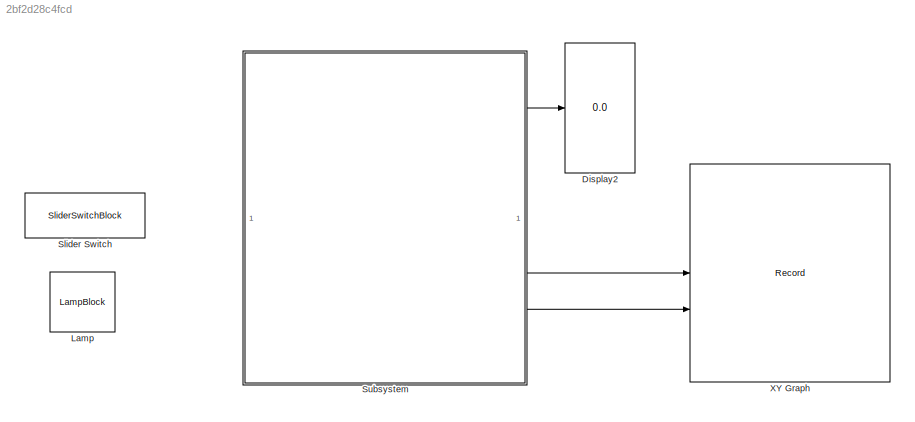
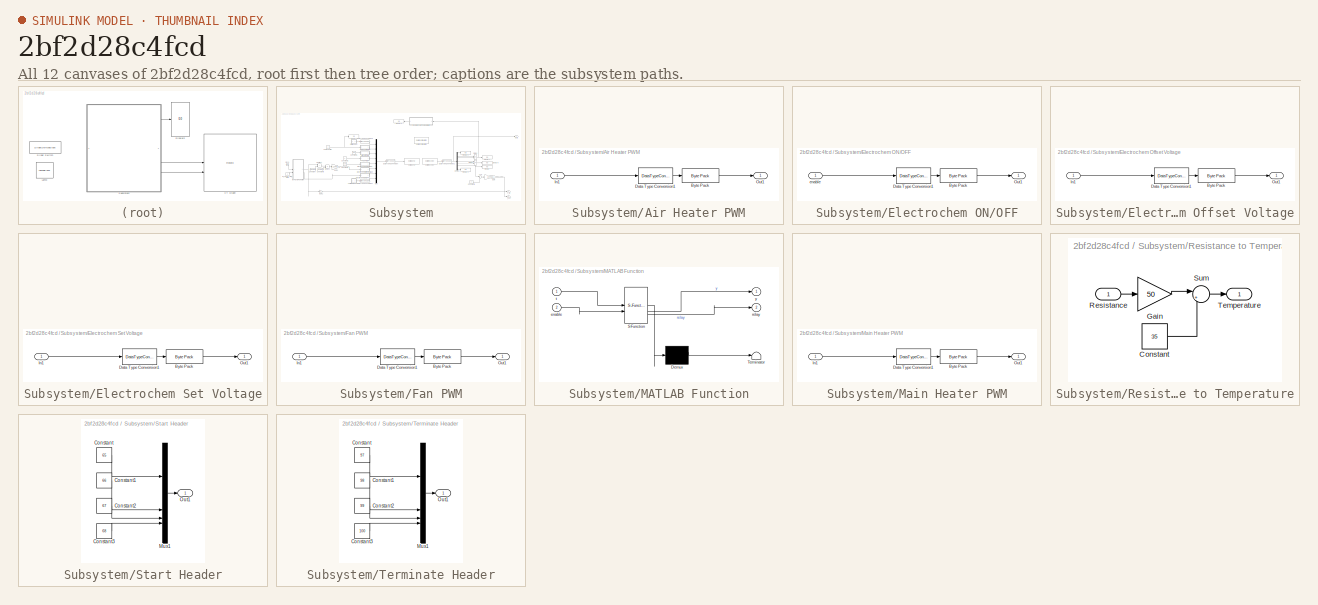
[diagram: thumbnail index - all 12 canvases of the model, root first then tree order]
MODEL slx_2bf2d28c4fcd
KIND model
CONFIG AbsTol = auto
CONFIG EnableMultiTasking = off
CONFIG FixedStep = 0.1
CONFIG MaxStep = auto
CONFIG MinStep = auto
CONFIG RelTol = 1e-3
CONFIG SampleTimeConstraint = Unconstrained
CONFIG SolverName = FixedStepDiscrete
CONFIG StartTime = 0.0
CONFIG StopTime = inf
BLOCK [Display] Display2
  Decimation = 5
BLOCK [LampBlock] Lamp
  LabelPosition = Hide
BLOCK [SliderSwitchBlock] Slider Switch
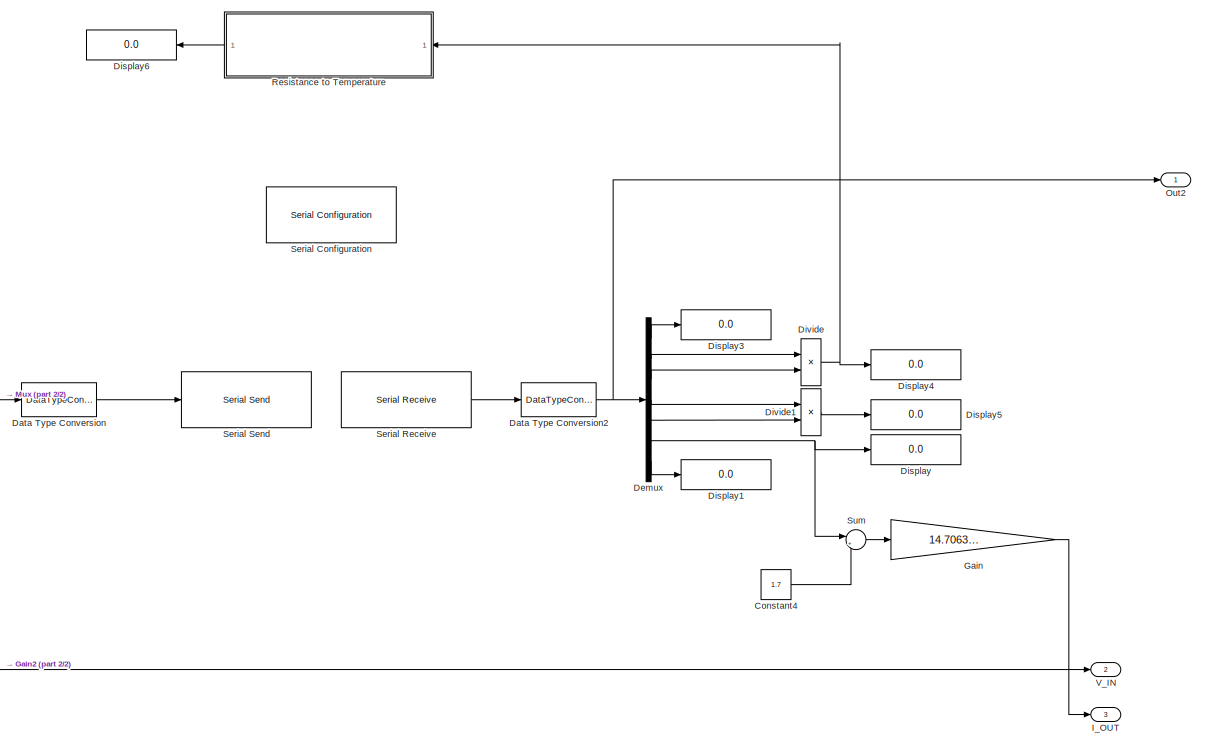
[diagram: Subsystem - part 1/2, right side, full height]
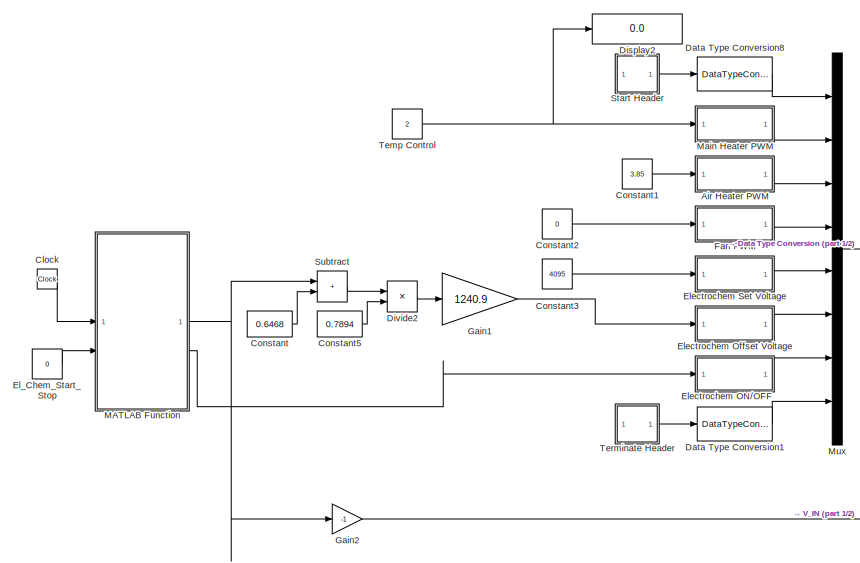
[diagram: Subsystem - part 2/2, middle left region]
BLOCK [SubSystem] Subsystem
BLOCK [SubSystem] Subsystem/Air Heater PWM
BLOCK [Reference] Subsystem/Air Heater PWM/Byte Pack  REF=etargetslib/Byte Pack
  LibrarySourceBlock = embeddedtargetslib/Host Communication/Byte Pack
  SourceBlock = etargetslib/Byte Pack
  SourceType = Byte pack
BLOCK [DataTypeConversion] Subsystem/Air Heater PWM/Data Type Conversion1
  OutDataTypeStr = single
  RndMeth = Floor
  SaturateOnIntegerOverflow = off
BLOCK [Inport] Subsystem/Air Heater PWM/In1
BLOCK [Outport] Subsystem/Air Heater PWM/Out1
BLOCK [Clock] Subsystem/Clock
BLOCK [Constant] Subsystem/Constant
  Value = 0.6468
BLOCK [Constant] Subsystem/Constant1
  Value = 3.85
BLOCK [Constant] Subsystem/Constant2
  Value = 0
BLOCK [Constant] Subsystem/Constant3
  Value = 4095
BLOCK [Constant] Subsystem/Constant4
  Value = 1.7
BLOCK [Constant] Subsystem/Constant5
  Value = 0.7894
BLOCK [DataTypeConversion] Subsystem/Data Type Conversion
  OutDataTypeStr = uint8
  RndMeth = Floor
  SaturateOnIntegerOverflow = off
BLOCK [DataTypeConversion] Subsystem/Data Type Conversion1
  OutDataTypeStr = uint8
  RndMeth = Floor
  SaturateOnIntegerOverflow = off
BLOCK [DataTypeConversion] Subsystem/Data Type Conversion2
  OutDataTypeStr = double
  RndMeth = Floor
  SaturateOnIntegerOverflow = off
BLOCK [DataTypeConversion] Subsystem/Data Type Conversion8
  OutDataTypeStr = uint8
  RndMeth = Floor
  SaturateOnIntegerOverflow = off
BLOCK [Demux] Subsystem/Demux
  Outputs = 7
BLOCK [Display] Subsystem/Display
  Decimation = 1
BLOCK [Display] Subsystem/Display1
  Decimation = 5
BLOCK [Display] Subsystem/Display2
  Decimation = 1
BLOCK [Display] Subsystem/Display3
  Decimation = 5
BLOCK [Display] Subsystem/Display4
  Decimation = 1
BLOCK [Display] Subsystem/Display5
  Decimation = 1
BLOCK [Display] Subsystem/Display6
  Decimation = 1
  NameLocation = top
BLOCK [Product] Subsystem/Divide
  Inputs = */
BLOCK [Product] Subsystem/Divide1
  Inputs = */
BLOCK [Product] Subsystem/Divide2
  Inputs = */
BLOCK [Constant] Subsystem/El_Chem_Start_Stop
  Value = 0
BLOCK [SubSystem] Subsystem/Electrochem ON//OFF
BLOCK [Reference] Subsystem/Electrochem ON//OFF/Byte Pack  REF=etargetslib/Byte Pack
  LibrarySourceBlock = embeddedtargetslib/Host Communication/Byte Pack
  SourceBlock = etargetslib/Byte Pack
  SourceType = Byte pack
BLOCK [DataTypeConversion] Subsystem/Electrochem ON//OFF/Data Type Conversion1
  OutDataTypeStr = single
  RndMeth = Floor
  SaturateOnIntegerOverflow = off
BLOCK [Outport] Subsystem/Electrochem ON//OFF/Out1
BLOCK [Inport] Subsystem/Electrochem ON//OFF/enable
BLOCK [SubSystem] Subsystem/Electrochem Offset Voltage
BLOCK [Reference] Subsystem/Electrochem Offset Voltage/Byte Pack  REF=etargetslib/Byte Pack
  LibrarySourceBlock = embeddedtargetslib/Host Communication/Byte Pack
  SourceBlock = etargetslib/Byte Pack
  SourceType = Byte pack
BLOCK [DataTypeConversion] Subsystem/Electrochem Offset Voltage/Data Type Conversion1
  OutDataTypeStr = single
  RndMeth = Floor
  SaturateOnIntegerOverflow = off
BLOCK [Inport] Subsystem/Electrochem Offset Voltage/In1
BLOCK [Outport] Subsystem/Electrochem Offset Voltage/Out1
BLOCK [SubSystem] Subsystem/Electrochem Set Voltage
BLOCK [Reference] Subsystem/Electrochem Set Voltage/Byte Pack  REF=etargetslib/Byte Pack
  LibrarySourceBlock = embeddedtargetslib/Host Communication/Byte Pack
  SourceBlock = etargetslib/Byte Pack
  SourceType = Byte pack
BLOCK [DataTypeConversion] Subsystem/Electrochem Set Voltage/Data Type Conversion1
  OutDataTypeStr = single
  RndMeth = Floor
  SaturateOnIntegerOverflow = off
BLOCK [Inport] Subsystem/Electrochem Set Voltage/In1
BLOCK [Outport] Subsystem/Electrochem Set Voltage/Out1
BLOCK [SubSystem] Subsystem/Fan PWM
BLOCK [Reference] Subsystem/Fan PWM/Byte Pack  REF=etargetslib/Byte Pack
  LibrarySourceBlock = embeddedtargetslib/Host Communication/Byte Pack
  SourceBlock = etargetslib/Byte Pack
  SourceType = Byte pack
BLOCK [DataTypeConversion] Subsystem/Fan PWM/Data Type Conversion1
  OutDataTypeStr = single
  RndMeth = Floor
  SaturateOnIntegerOverflow = off
BLOCK [Inport] Subsystem/Fan PWM/In1
BLOCK [Outport] Subsystem/Fan PWM/Out1
BLOCK [Gain] Subsystem/Gain
  Gain = 14.7063257054*10^-6
BLOCK [Gain] Subsystem/Gain1
  Gain = 1240.9
BLOCK [Gain] Subsystem/Gain2
  Gain = -1
BLOCK [Outport] Subsystem/I_OUT
  Port = 3
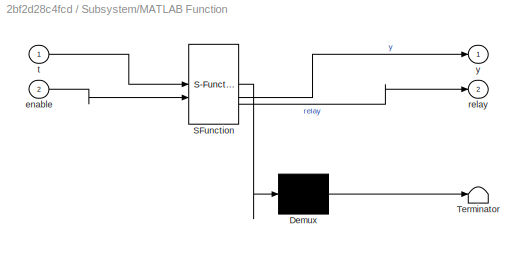
BLOCK [SubSystem] Subsystem/MATLAB Function
  ErrorFcn = Stateflow.Translate.translate
  PermitHierarchicalResolution = ExplicitOnly
  SFBlockType = MATLAB Function
  TreatAsAtomicUnit = on
BLOCK [Demux] Subsystem/MATLAB Function/ Demux 
  Outputs = 1
BLOCK [S-Function] Subsystem/MATLAB Function/ SFunction 
  EnableBusSupport = on
  FunctionName = sf_sfun
  PortCounts = [2 3]
  SFcnIsStateOwnerBlock = off
  SFunctionDeploymentMode = off
  Tag = Stateflow S-Function 2
BLOCK [Terminator] Subsystem/MATLAB Function/ Terminator 
BLOCK [Inport] Subsystem/MATLAB Function/enable
  Port = 2
BLOCK [Outport] Subsystem/MATLAB Function/relay
  Port = 2
BLOCK [Inport] Subsystem/MATLAB Function/t
BLOCK [Outport] Subsystem/MATLAB Function/y
BLOCK [SubSystem] Subsystem/Main Heater PWM
BLOCK [Reference] Subsystem/Main Heater PWM/Byte Pack  REF=etargetslib/Byte Pack
  LibrarySourceBlock = embeddedtargetslib/Host Communication/Byte Pack
  SourceBlock = etargetslib/Byte Pack
  SourceType = Byte pack
BLOCK [DataTypeConversion] Subsystem/Main Heater PWM/Data Type Conversion1
  OutDataTypeStr = single
  RndMeth = Floor
  SaturateOnIntegerOverflow = off
BLOCK [Inport] Subsystem/Main Heater PWM/In1
BLOCK [Outport] Subsystem/Main Heater PWM/Out1
BLOCK [Mux] Subsystem/Mux
  DisplayOption = bar
  Inputs = 8
BLOCK [Outport] Subsystem/Out2
BLOCK [SubSystem] Subsystem/Resistance to Temperature
  NameLocation = top
BLOCK [Constant] Subsystem/Resistance to Temperature/Constant
  Value = 35
BLOCK [Gain] Subsystem/Resistance to Temperature/Gain
  Gain = 50
BLOCK [Inport] Subsystem/Resistance to Temperature/Resistance
  NameLocation = top
BLOCK [Sum] Subsystem/Resistance to Temperature/Sum
  Inputs = |++
BLOCK [Outport] Subsystem/Resistance to Temperature/Temperature
  NameLocation = top
BLOCK [Reference] Subsystem/Serial Configuration  REF=instrumentseriallib/Serial Configuration
  LibrarySourceBlock = instrumentlib/Serial Configuration
  Priority = -200000
  SourceBlock = instrumentseriallib/Serial Configuration
  SourceType = system.SerialConfiguration
BLOCK [Reference] Subsystem/Serial Receive  REF=instrumentseriallib/Serial Receive
  LibrarySourceBlock = instrumentlib/Serial Receive
  Priority = 1
  SourceBlock = instrumentseriallib/Serial Receive
  SourceType = system.SerialReceive
BLOCK [Reference] Subsystem/Serial Send  REF=instrumentseriallib/Serial Send
  LibrarySourceBlock = instrumentlib/Serial Send
  Priority = 1
  SourceBlock = instrumentseriallib/Serial Send
  SourceType = system.SerialSend
BLOCK [SubSystem] Subsystem/Start Header
BLOCK [Constant] Subsystem/Start Header/Constant
  Value = 65
BLOCK [Constant] Subsystem/Start Header/Constant1
  Value = 66
BLOCK [Constant] Subsystem/Start Header/Constant2
  Value = 67
BLOCK [Constant] Subsystem/Start Header/Constant3
  Value = 68
BLOCK [Mux] Subsystem/Start Header/Mux1
  DisplayOption = bar
BLOCK [Outport] Subsystem/Start Header/Out1
BLOCK [Sum] Subsystem/Subtract
  IconShape = rectangular
BLOCK [Sum] Subsystem/Sum
  Inputs = |+-
BLOCK [Constant] Subsystem/Temp Control
  Value = 2
BLOCK [SubSystem] Subsystem/Terminate Header
BLOCK [Constant] Subsystem/Terminate Header/Constant
  Value = 97
BLOCK [Constant] Subsystem/Terminate Header/Constant1
  Value = 98
BLOCK [Constant] Subsystem/Terminate Header/Constant2
  Value = 99
BLOCK [Constant] Subsystem/Terminate Header/Constant3
  Value = 100
BLOCK [Mux] Subsystem/Terminate Header/Mux1
  DisplayOption = bar
BLOCK [Outport] Subsystem/Terminate Header/Out1
BLOCK [Outport] Subsystem/V_IN
  Port = 2
BLOCK [Record] XY Graph
  CompatibilityTag = XY
  FileSettingsInternal = {"entries":[{"content":{"excelSettings":{"content":{},"type":"Streamout.ExcelSettings"}},"type":"Streamout.FileSettingStorage","uuid":""}],"packageUris":["http:\/\/schema.mathworks.com\/mf0\/streamout_blocks\/R2020a"],"version":"1.0"}
  Layout = [1 1]
  SignalsInternal = {"entries":[{"content":{"signals":[{"content":{"blockPath":[],"dimensions":[1],"domain":"","lineColor":"#a2142f","plots":[ 1 ],"port":1,"signalID":1,"signalName":"Subsystem:2"},"type":"RecordBlkView.Signal","uuid":""},{"content":{"blockPath":[],"dimensions":[1,1],"domain":"","lineColor":"#139fff","plots":[ 1 ],"port":2,"signalID":2,"signalName":"Subsystem:3"},"type":"RecordBlkView.Signal","uuid":"...<+148ch>
  VisualizationBindings = {"xyplotplugin":{"info":[{"series":[{"bindingParametersList":[{"parameter":"X-Axis","signalID":1,"signalName":"Subsystem:2"},{"parameter":"Y-Axis","signalID":2,"signalName":"Subsystem:3"}],"seriesID":0}],"subplotID":1}]}}
LINE Subsystem/Air Heater PWM/Byte Pack:1 -> Subsystem/Air Heater PWM/Out1:1
LINE Subsystem/Air Heater PWM/Data Type Conversion1:1 -> Subsystem/Air Heater PWM/Byte Pack:1
LINE Subsystem/Air Heater PWM/In1:1 -> Subsystem/Air Heater PWM/Data Type Conversion1:1
LINE Subsystem/Air Heater PWM:1 -> Subsystem/Mux:3
LINE Subsystem/Clock:1 -> Subsystem/MATLAB Function:1
LINE Subsystem/Constant1:1 -> Subsystem/Air Heater PWM:1
LINE Subsystem/Constant2:1 -> Subsystem/Fan PWM:1
LINE Subsystem/Constant3:1 -> Subsystem/Electrochem Set Voltage:1
LINE Subsystem/Constant4:1 -> Subsystem/Sum:2
LINE Subsystem/Constant5:1 -> Subsystem/Divide2:2
LINE Subsystem/Constant:1 -> Subsystem/Subtract:2
LINE Subsystem/Data Type Conversion1:1 -> Subsystem/Mux:8
NET Subsystem/Data Type Conversion2:1 -> Subsystem/Demux:1, Subsystem/Out2:1
LINE Subsystem/Data Type Conversion8:1 -> Subsystem/Mux:1
LINE Subsystem/Data Type Conversion:1 -> Subsystem/Serial Send:1
LINE Subsystem/Demux:1 -> Subsystem/Display3:1
LINE Subsystem/Demux:2 -> Subsystem/Divide:1
LINE Subsystem/Demux:3 -> Subsystem/Divide:2
LINE Subsystem/Demux:4 -> Subsystem/Divide1:1
LINE Subsystem/Demux:5 -> Subsystem/Divide1:2
NET Subsystem/Demux:6 -> Subsystem/Display:1, Subsystem/Sum:1
LINE Subsystem/Demux:7 -> Subsystem/Display1:1
LINE Subsystem/Divide1:1 -> Subsystem/Display5:1
LINE Subsystem/Divide2:1 -> Subsystem/Gain1:1
NET Subsystem/Divide:1 -> Subsystem/Display4:1, Subsystem/Resistance to Temperature:1
LINE Subsystem/El_Chem_Start_Stop:1 -> Subsystem/MATLAB Function:2
LINE Subsystem/Electrochem ON//OFF/Byte Pack:1 -> Subsystem/Electrochem ON//OFF/Out1:1
LINE Subsystem/Electrochem ON//OFF/Data Type Conversion1:1 -> Subsystem/Electrochem ON//OFF/Byte Pack:1
LINE Subsystem/Electrochem ON//OFF/enable:1 -> Subsystem/Electrochem ON//OFF/Data Type Conversion1:1
LINE Subsystem/Electrochem ON//OFF:1 -> Subsystem/Mux:7
LINE Subsystem/Electrochem Offset Voltage/Byte Pack:1 -> Subsystem/Electrochem Offset Voltage/Out1:1
LINE Subsystem/Electrochem Offset Voltage/Data Type Conversion1:1 -> Subsystem/Electrochem Offset Voltage/Byte Pack:1
LINE Subsystem/Electrochem Offset Voltage/In1:1 -> Subsystem/Electrochem Offset Voltage/Data Type Conversion1:1
LINE Subsystem/Electrochem Offset Voltage:1 -> Subsystem/Mux:6
LINE Subsystem/Electrochem Set Voltage/Byte Pack:1 -> Subsystem/Electrochem Set Voltage/Out1:1
LINE Subsystem/Electrochem Set Voltage/Data Type Conversion1:1 -> Subsystem/Electrochem Set Voltage/Byte Pack:1
LINE Subsystem/Electrochem Set Voltage/In1:1 -> Subsystem/Electrochem Set Voltage/Data Type Conversion1:1
LINE Subsystem/Electrochem Set Voltage:1 -> Subsystem/Mux:5
LINE Subsystem/Fan PWM/Byte Pack:1 -> Subsystem/Fan PWM/Out1:1
LINE Subsystem/Fan PWM/Data Type Conversion1:1 -> Subsystem/Fan PWM/Byte Pack:1
LINE Subsystem/Fan PWM/In1:1 -> Subsystem/Fan PWM/Data Type Conversion1:1
LINE Subsystem/Fan PWM:1 -> Subsystem/Mux:4
LINE Subsystem/Gain1:1 -> Subsystem/Electrochem Offset Voltage:1
LINE Subsystem/Gain2:1 -> Subsystem/V_IN:1
LINE Subsystem/Gain:1 -> Subsystem/I_OUT:1
NET Subsystem/MATLAB Function:1 -> Subsystem/Gain2:1, Subsystem/Subtract:1
LINE Subsystem/MATLAB Function:2 -> Subsystem/Electrochem ON//OFF:1
LINE Subsystem/Main Heater PWM/Byte Pack:1 -> Subsystem/Main Heater PWM/Out1:1
LINE Subsystem/Main Heater PWM/Data Type Conversion1:1 -> Subsystem/Main Heater PWM/Byte Pack:1
LINE Subsystem/Main Heater PWM/In1:1 -> Subsystem/Main Heater PWM/Data Type Conversion1:1
LINE Subsystem/Main Heater PWM:1 -> Subsystem/Mux:2
LINE Subsystem/Mux:1 -> Subsystem/Data Type Conversion:1
LINE Subsystem/Resistance to Temperature/Constant:1 -> Subsystem/Resistance to Temperature/Sum:2
LINE Subsystem/Resistance to Temperature/Gain:1 -> Subsystem/Resistance to Temperature/Sum:1
LINE Subsystem/Resistance to Temperature/Resistance:1 -> Subsystem/Resistance to Temperature/Gain:1
LINE Subsystem/Resistance to Temperature/Sum:1 -> Subsystem/Resistance to Temperature/Temperature:1
LINE Subsystem/Resistance to Temperature:1 -> Subsystem/Display6:1
LINE Subsystem/Serial Receive:1 -> Subsystem/Data Type Conversion2:1
LINE Subsystem/Start Header/Constant1:1 -> Subsystem/Start Header/Mux1:2
LINE Subsystem/Start Header/Constant2:1 -> Subsystem/Start Header/Mux1:3
LINE Subsystem/Start Header/Constant3:1 -> Subsystem/Start Header/Mux1:4
LINE Subsystem/Start Header/Constant:1 -> Subsystem/Start Header/Mux1:1
LINE Subsystem/Start Header/Mux1:1 -> Subsystem/Start Header/Out1:1
LINE Subsystem/Start Header:1 -> Subsystem/Data Type Conversion8:1
LINE Subsystem/Subtract:1 -> Subsystem/Divide2:1
LINE Subsystem/Sum:1 -> Subsystem/Gain:1
NET Subsystem/Temp Control:1 -> Subsystem/Display2:1, Subsystem/Main Heater PWM:1
LINE Subsystem/Terminate Header/Constant1:1 -> Subsystem/Terminate Header/Mux1:2
LINE Subsystem/Terminate Header/Constant2:1 -> Subsystem/Terminate Header/Mux1:3
LINE Subsystem/Terminate Header/Constant3:1 -> Subsystem/Terminate Header/Mux1:4
LINE Subsystem/Terminate Header/Constant:1 -> Subsystem/Terminate Header/Mux1:1
LINE Subsystem/Terminate Header/Mux1:1 -> Subsystem/Terminate Header/Out1:1
LINE Subsystem/Terminate Header:1 -> Subsystem/Data Type Conversion1:1
LINE Subsystem:1 -> Display2:1
LINE Subsystem:2 -> XY Graph:1
LINE Subsystem:3 -> XY Graph:2
note: NET lines group one-source signal fan-out (src -> all destinations, sorted); 1:1 wires keep LINE
CHART Subsystem/MATLAB Function states=1 transitions=1
  STATE_LABEL 'eML_blk_kernel()'
  STATE_LABEL 'SCRIPT:\nfunction [y, relay] = sequence_generator(t, enable)\n%#codegen\n\n% Parameters\ninitial_value = 0.35;\nfinal_value = -0.15;\nstep_size = 0.003;\nnum_cycles = 6;\nsample_time = 0.1;\n\n% Calculate the number of steps\ntotal_steps = (final_value - initial_value) / step_size;\nif total_steps < 0\n    total_steps = abs(total_steps);\nend\n\n% Initialize persistent variables\npersistent current_value direction ...<+1631ch>'
CHART  states=0 transitions=0
